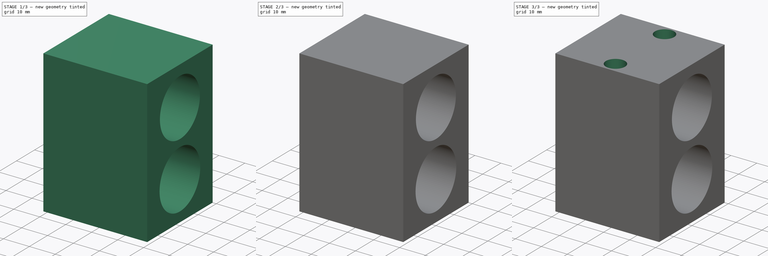
[diagram: build sequence overview — one tinted view per stage of 3, left to right]
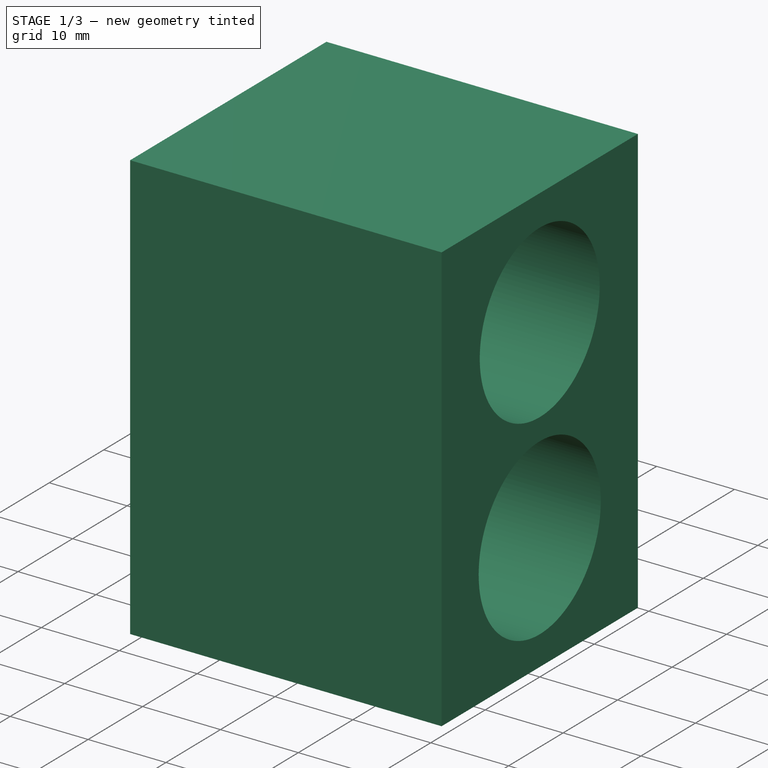
[diagram: stage 1 of 3 — iso view after this stage's code; geometry added in this stage tinted green]
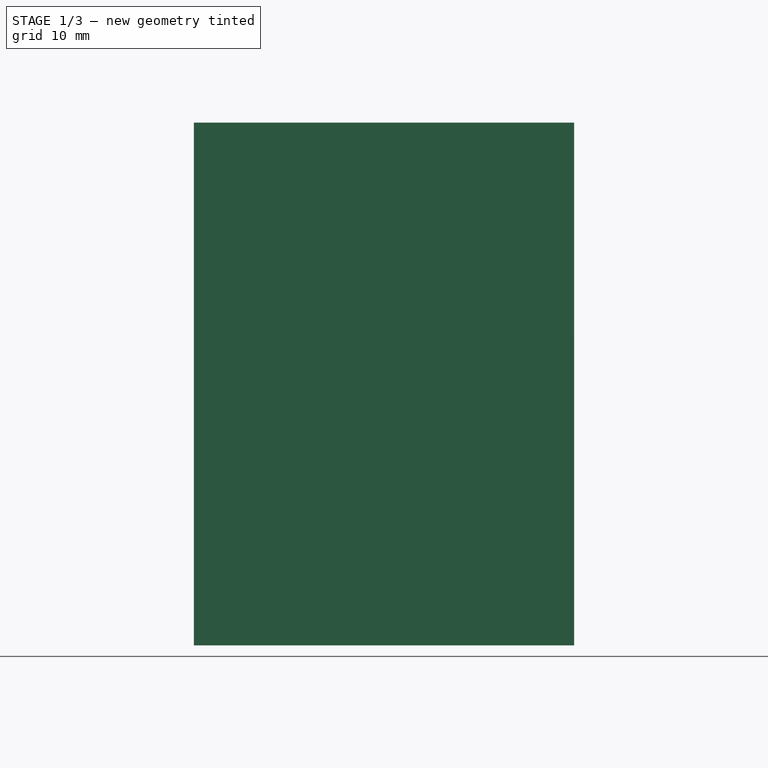
[diagram: stage 1 of 3 — front view after this stage's code; geometry added in this stage tinted green]
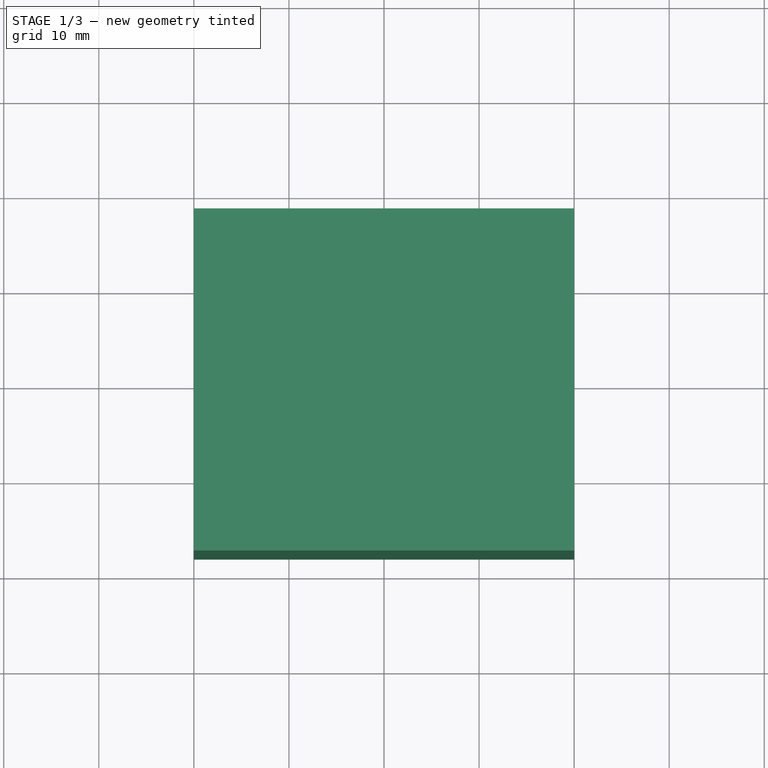
[diagram: stage 1 of 3 — top view after this stage's code; geometry added in this stage tinted green]
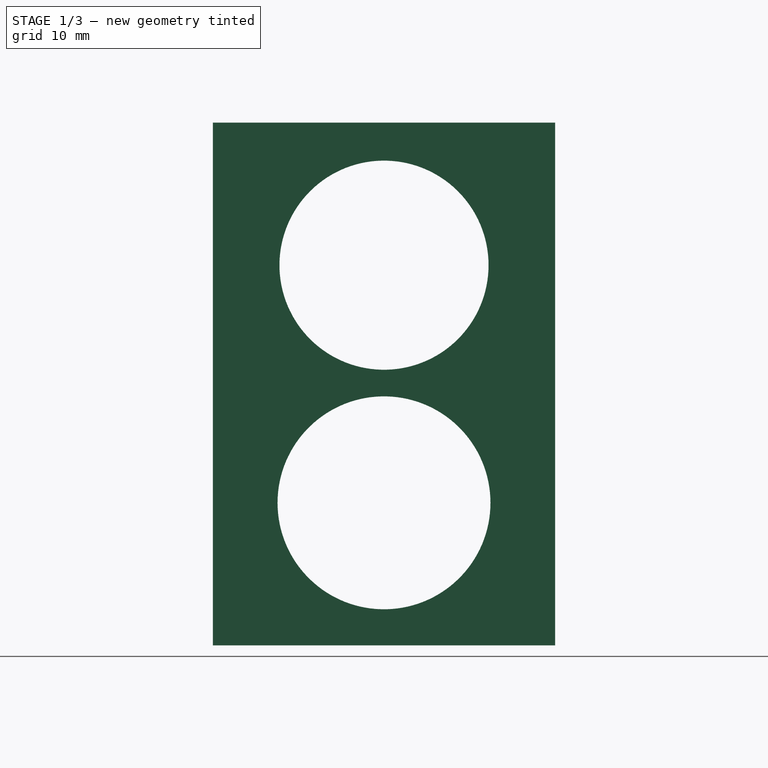
[diagram: stage 1 of 3 — right view after this stage's code; geometry added in this stage tinted green]
FCSTD DOCUMENT  (FreeCAD 0.16R)
Label: HC30block
License: All rights reserved
LicenseURL: http://en.wikipedia.org/wiki/All_rights_reserved
objects: Sketcher::SketchObject×5, PartDesign::Pocket×4, PartDesign::Pad×1
note: 15 computed .brp shape members not serialized (recipe doc carries the construction recipe); baked Part::Feature solids carry a one-line shape summary decoded from their .brp

FEATURE [Sketcher::SketchObject] Sketch
  sketch-geometry (4):
    g0: LineSegment StartX=-20 StartY=18 StartZ=0 EndX=20 EndY=18 EndZ=0
    g1: LineSegment StartX=20 StartY=18 StartZ=0 EndX=20 EndY=-18 EndZ=0
    g2: LineSegment StartX=20 StartY=-18 StartZ=0 EndX=-20 EndY=-18 EndZ=0
    g3: LineSegment StartX=-20 StartY=-18 StartZ=0 EndX=-20 EndY=18 EndZ=0
  constraints (11):
    c: Coincident(g0,g1)
    c: Coincident(g1,g2)
    c: Coincident(g2,g3)
    c: Coincident(g3,g0)
    c: Horizontal(g0)
    c: Horizontal(g2)
    c: Vertical(g1)
    c: Vertical(g3)
    c: Symmetric(g1,g0,g-1)
    c: Distance(g1) = 36
    c: Distance(g0) = 40
FEATURE [PartDesign::Pad] Pad
  Length = 55
  Length2 = 100
  Sketch = -> Sketch
  Type = 0
FEATURE [Sketcher::SketchObject] Sketch001
  Placement = pos=(20,0,0) rot=(0.57735,0.57735,0.57735;2.0944rad)
  Support = -> Pad [Face2]
  sketch-geometry (2):
    g0: Circle CenterX=0 CenterY=15 CenterZ=0 NormalX=0 NormalY=0 NormalZ=1 Radius=11.2
    g1: Circle CenterX=0 CenterY=40 CenterZ=0 NormalX=0 NormalY=0 NormalZ=1 Radius=11
  constraints (6):
    c: Radius(g0) = 11.2
    c: PointOnObject(g0,g-2)
    c: DistanceY(g0) = 15
    c: Radius(g1) = 11
    c: PointOnObject(g1,g-2)
    c: DistanceY(g1) = 40
FEATURE [PartDesign::Pocket] Pocket
  Length = 5
  Sketch = -> Sketch001
  Type = 1
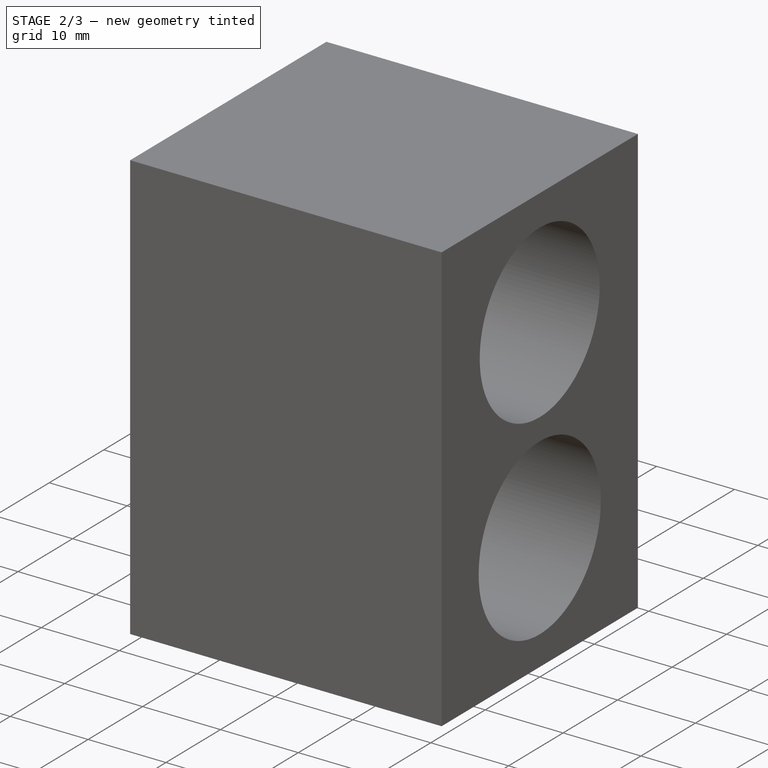
[diagram: stage 2 of 3 — iso view after this stage's code; geometry added in this stage tinted green]
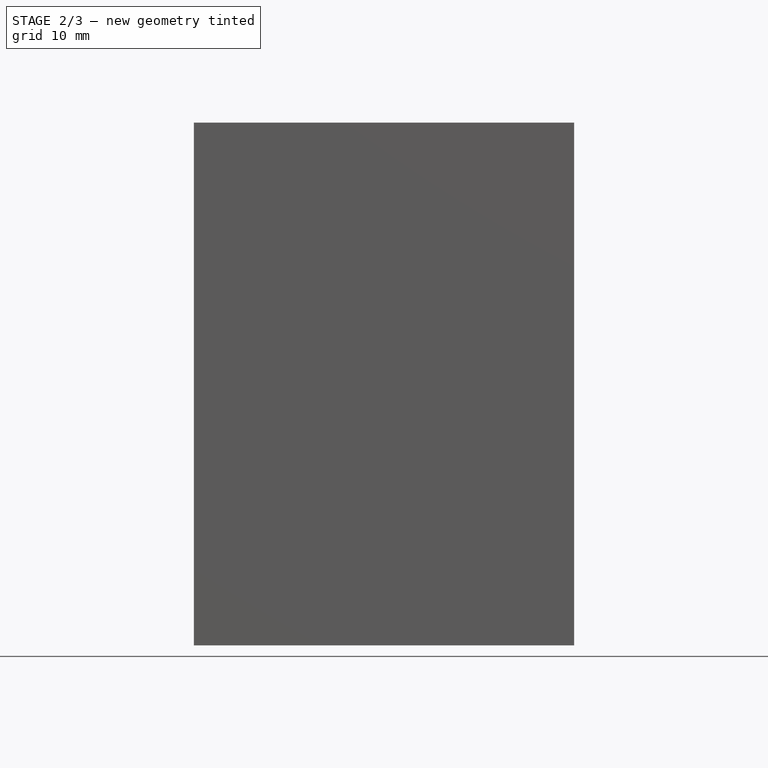
[diagram: stage 2 of 3 — front view after this stage's code; geometry added in this stage tinted green]
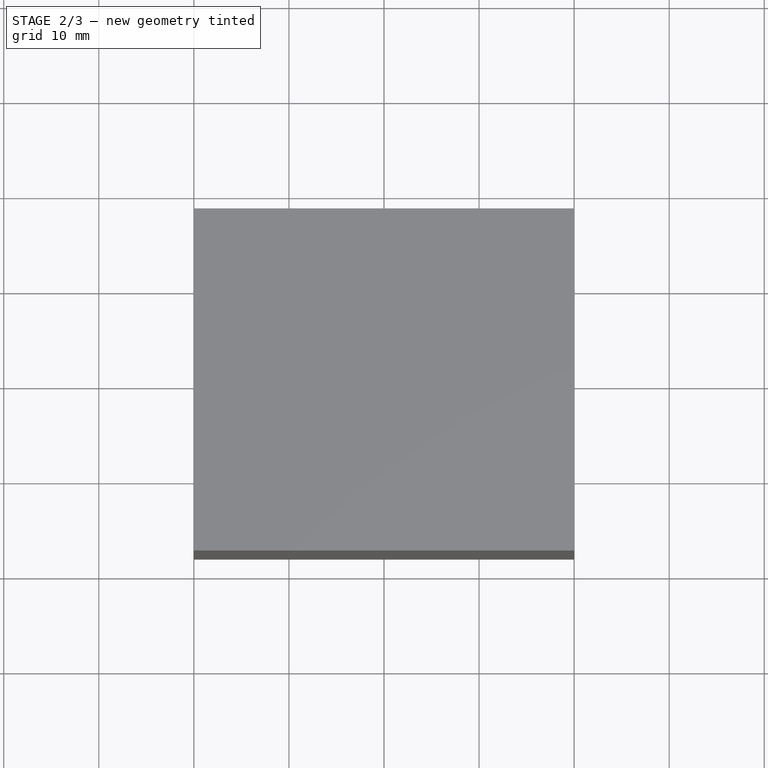
[diagram: stage 2 of 3 — top view after this stage's code; geometry added in this stage tinted green]
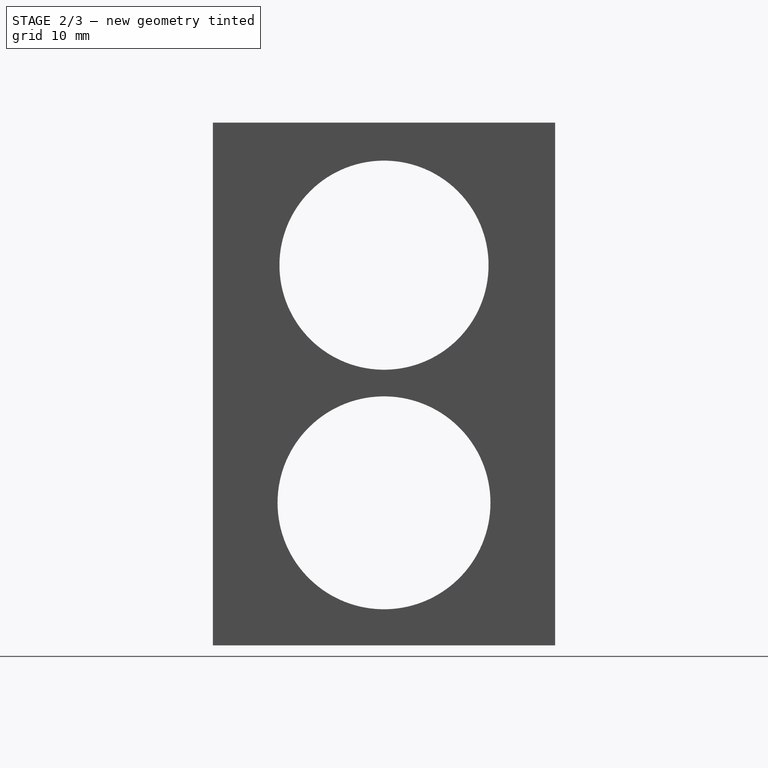
[diagram: stage 2 of 3 — right view after this stage's code; geometry added in this stage tinted green]
FEATURE [Sketcher::SketchObject] Sketch002
  Placement = pos=(0,0,0) rot=(1,0,0;3.14159rad)
  Support = -> Pocket [Face4]
  sketch-geometry (14):
    g0: LineSegment StartX=2.07846 StartY=9.9 StartZ=0 EndX=4.15692 EndY=13.5 EndZ=0
    g1: LineSegment StartX=4.15692 StartY=13.5 StartZ=0 EndX=2.07846 EndY=17.1 EndZ=0
    g2: LineSegment StartX=2.07846 StartY=17.1 StartZ=0 EndX=-2.07846 EndY=17.1 EndZ=0
    g3: LineSegment StartX=-2.07846 StartY=17.1 StartZ=0 EndX=-4.15692 EndY=13.5 EndZ=0
    g4: LineSegment StartX=-4.15692 StartY=13.5 StartZ=0 EndX=-2.07846 EndY=9.9 EndZ=0
    g5: LineSegment StartX=-2.07846 StartY=9.9 StartZ=0 EndX=2.07846 EndY=9.9 EndZ=0
    g6: Circle [constr] CenterX=0 CenterY=13.5 CenterZ=0 NormalX=0 NormalY=0 NormalZ=1 Radius=4.15692
    g7: LineSegment StartX=4.15692 StartY=-13.5 StartZ=0 EndX=2.07846 EndY=-9.9 EndZ=0
    g8: LineSegment StartX=2.07846 StartY=-9.9 StartZ=0 EndX=-2.07846 EndY=-9.9 EndZ=0
    g9: LineSegment StartX=-2.07846 StartY=-9.9 StartZ=0 EndX=-4.15692 EndY=-13.5 EndZ=0
    g10: LineSegment StartX=-4.15692 StartY=-13.5 StartZ=0 EndX=-2.07846 EndY=-17.1 EndZ=0
    g11: LineSegment StartX=-2.07846 StartY=-17.1 StartZ=0 EndX=2.07846 EndY=-17.1 EndZ=0
    g12: LineSegment StartX=2.07846 StartY=-17.1 StartZ=0 EndX=4.15692 EndY=-13.5 EndZ=0
    g13: Circle [constr] CenterX=0 CenterY=-13.5 CenterZ=0 NormalX=0 NormalY=0 NormalZ=1 Radius=4.15692
  constraints (34):
    c: Coincident(g0,g1)
    c: Coincident(g1,g2)
    c: Coincident(g2,g3)
    c: Coincident(g3,g4)
    c: Coincident(g4,g5)
    c: Coincident(g5,g0)
    c: Equal(g0, g1-g5) x5
    c: PointOnObject(g0,g6)
    c: PointOnObject(g1,g6)
    c: PointOnObject(g2,g6)
    c: PointOnObject(g3,g6)
    c: PointOnObject(g4,g6)
    c: PointOnObject(g5,g6)
    c: Horizontal(g2)
    c: Distance(g0,g4) = 7.2
    c: PointOnObject(g6,g-2)
    c: DistanceY(g6) = 13.5
    c: Coincident(g7,g8)
    c: Coincident(g8,g9)
    c: Coincident(g9,g10)
    c: Coincident(g10,g11)
    c: Coincident(g11,g12)
    c: Coincident(g12,g7)
    c: Equal(g7, g8-g12) x5
    c: PointOnObject(g7,g13)
    c: PointOnObject(g8,g13)
    c: PointOnObject(g9,g13)
    c: PointOnObject(g10,g13)
    c: PointOnObject(g11,g13)
    c: PointOnObject(g12,g13)
    c: Horizontal(g8)
    c: Distance(g7,g11) = 7.2
    c: PointOnObject(g13,g-2)
    c: DistanceY(g13) = -13.5
FEATURE [PartDesign::Pocket] Pocket001
  Length = 4
  Sketch = -> Sketch002
  Type = 0
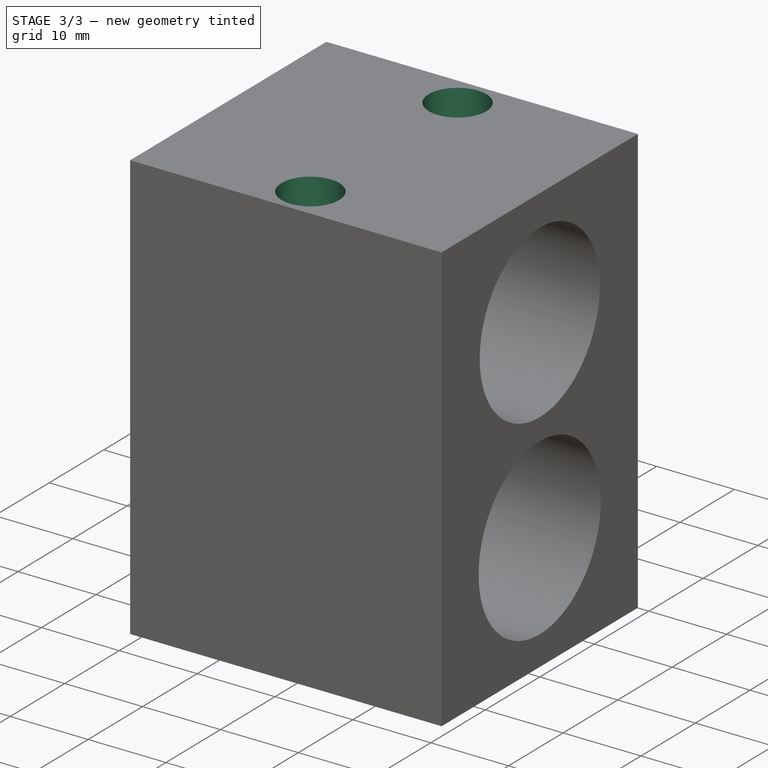
[diagram: stage 3 of 3 — iso view after this stage's code; geometry added in this stage tinted green]
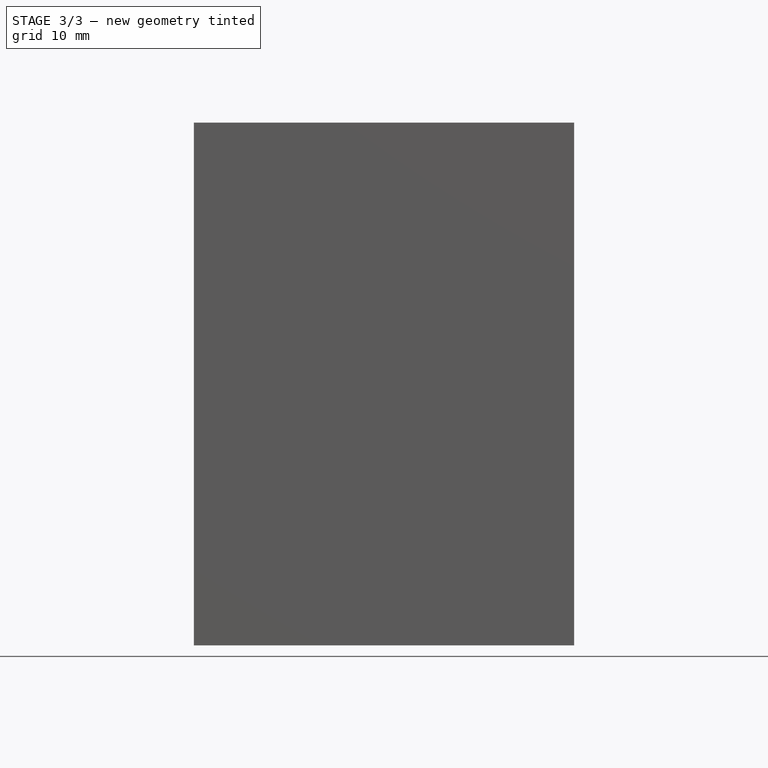
[diagram: stage 3 of 3 — front view after this stage's code; geometry added in this stage tinted green]
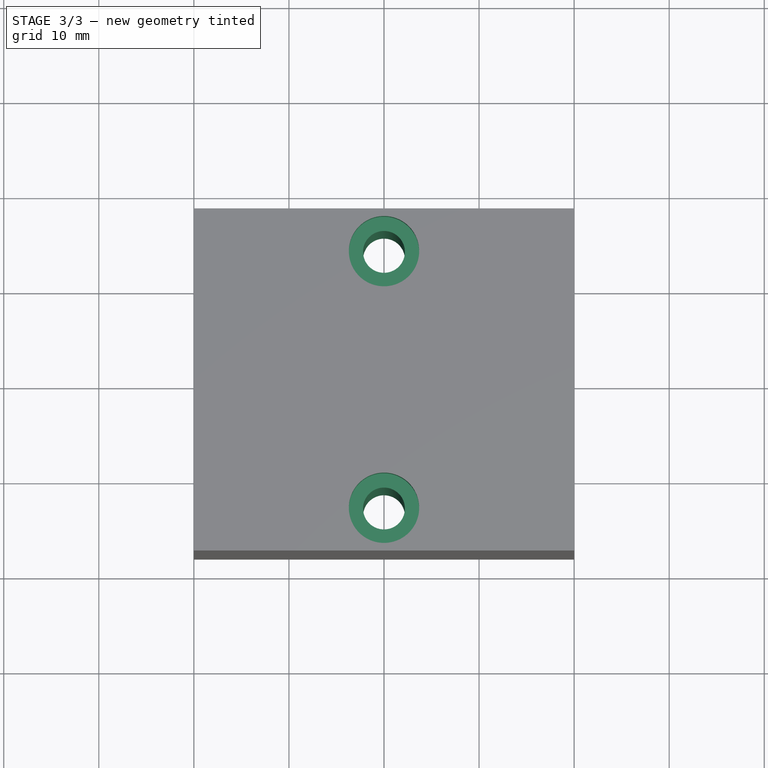
[diagram: stage 3 of 3 — top view after this stage's code; geometry added in this stage tinted green]
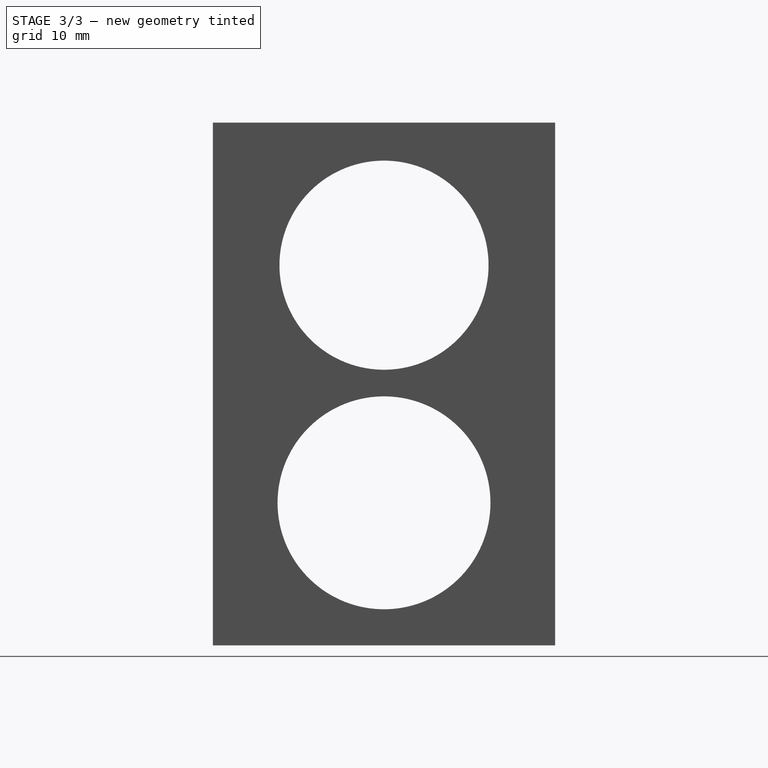
[diagram: stage 3 of 3 — right view after this stage's code; geometry added in this stage tinted green]
FEATURE [Sketcher::SketchObject] Sketch004
  ExternalGeometry = -> [Pocket001]
  Placement = pos=(0,0,4) rot=(1,0,0;3.14159rad)
  Support = -> Pocket001 [Face21]
  sketch-geometry (2):
    g0: Circle CenterX=0 CenterY=13.5 CenterZ=0 NormalX=0 NormalY=0 NormalZ=1 Radius=2.2
    g1: Circle CenterX=0 CenterY=-13.5 CenterZ=0 NormalX=0 NormalY=0 NormalZ=1 Radius=2.2
  constraints (6):
    c: Radius(g0) = 2.2
    c: PointOnObject(g0,g-2)
    c: Radius(g1) = 2.2
    c: PointOnObject(g1,g-2)
    c: DistanceY(g1) = -13.5
    c: DistanceY(g0) = 13.5
FEATURE [PartDesign::Pocket] Pocket002
  Length = 5
  Sketch = -> Sketch004
  Type = 1
FEATURE [Sketcher::SketchObject] Sketch005
  Placement = pos=(0,0,55) rot=(0,0,1;0rad)
  Support = -> Pocket002 [Face5]
  sketch-geometry (2):
    g0: Circle CenterX=0 CenterY=-13.5 CenterZ=0 NormalX=0 NormalY=0 NormalZ=1 Radius=3.7
    g1: Circle CenterX=0 CenterY=13.5 CenterZ=0 NormalX=0 NormalY=0 NormalZ=1 Radius=3.7
  constraints (5):
    c: Radius(g0) = 3.7
    c: Radius(g1) = 3.7
    c: DistanceY(g1) = 13.5
    c: PointOnObject(g1,g-2)
    c: DistanceY(g0) = -13.5
FEATURE [PartDesign::Pocket] Pocket003
  Length = 4.5
  Sketch = -> Sketch005
  Type = 0
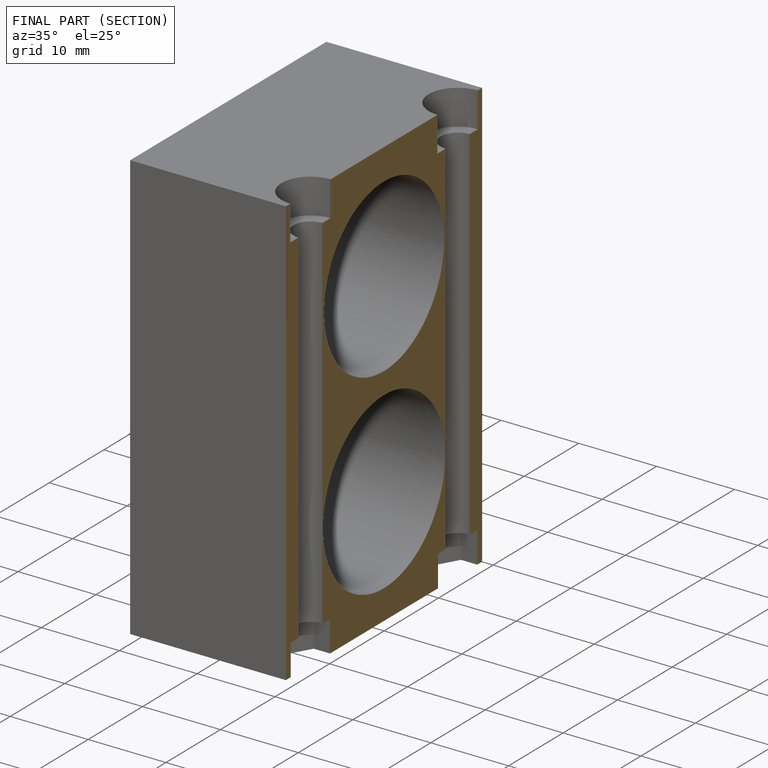
[diagram: finished part — half-section view (interior)]
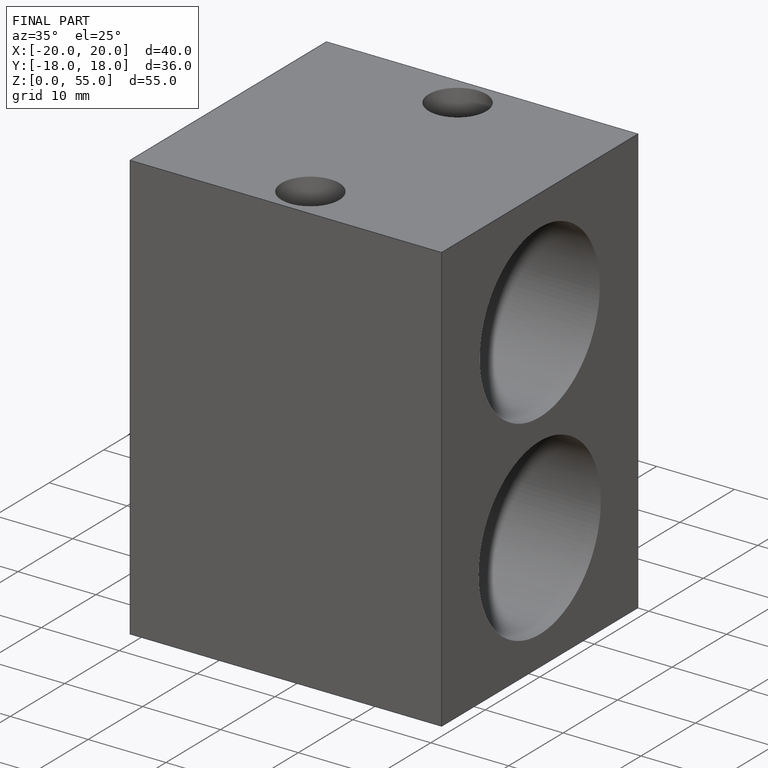
[diagram: finished part — iso view with bounding-box wireframe]
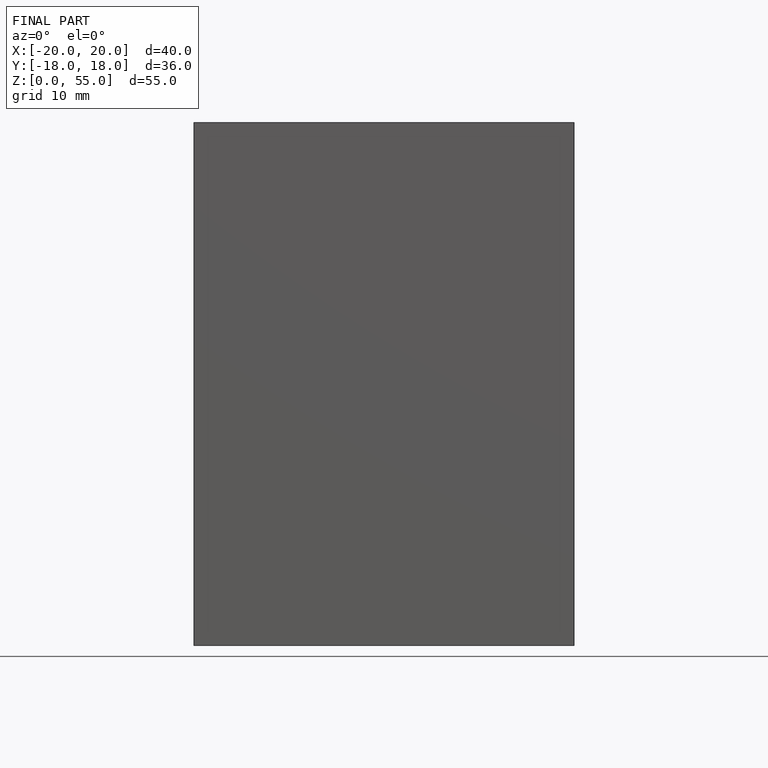
[diagram: finished part — front view with bounding-box wireframe]
